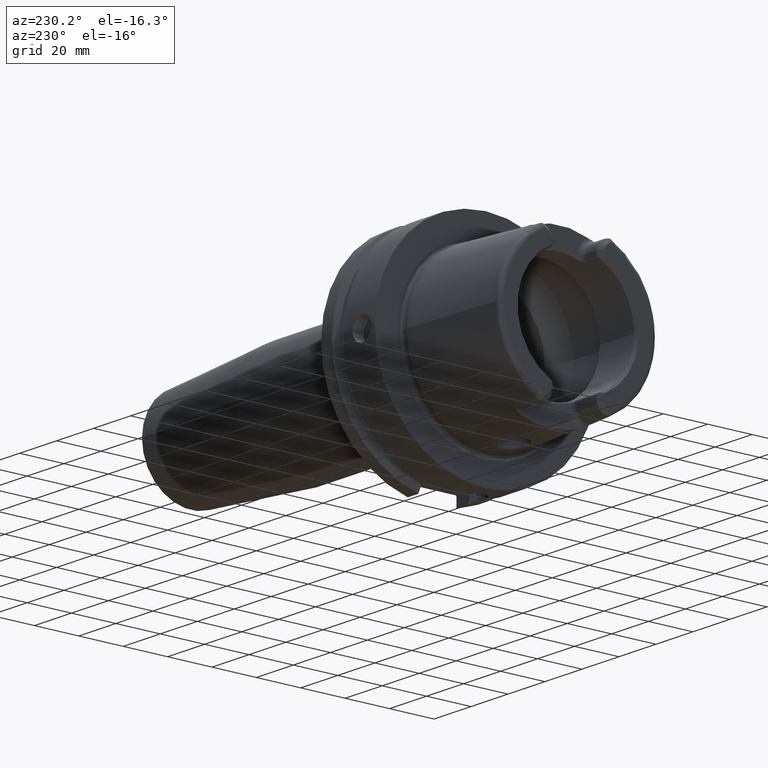
[diagram: clean part render]
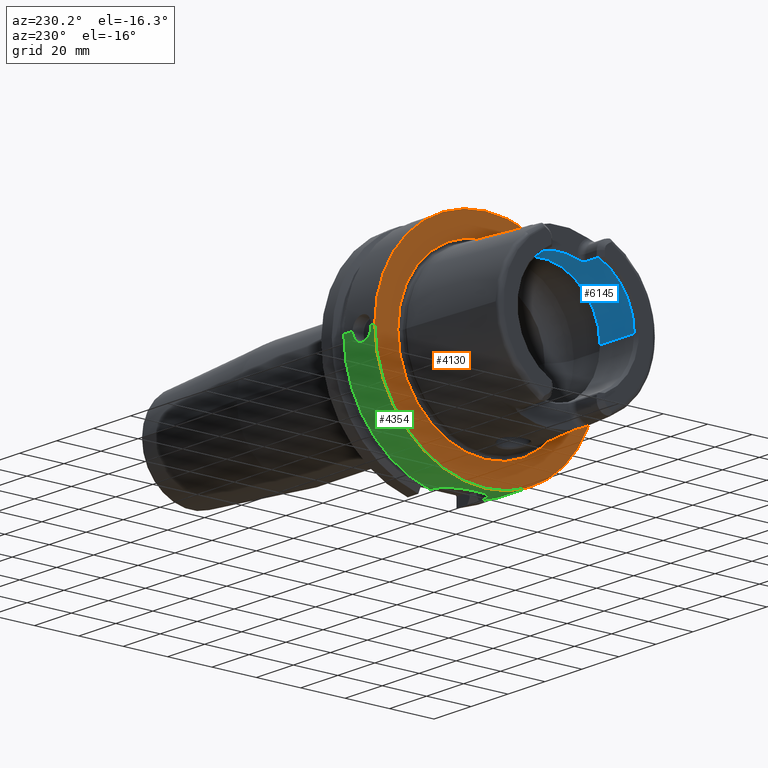
[diagram: same view with three faces highlighted in distinct colors, each labeled with its STEP entity id]
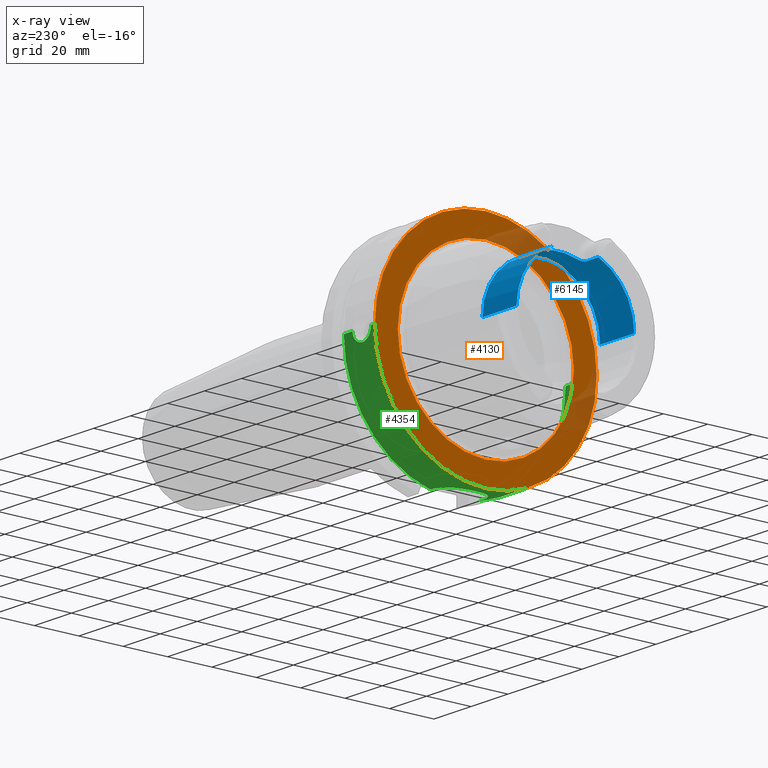
[diagram: x-ray of the same camera — body ghosted, the three highlighted faces saturated]
A machine part, auxiliary view with three faces highlighted in distinct colors.
The next image is the same camera in x-ray (body ghosted, the three faces saturated) — at least one of them is partly hidden behind the body in this view.
Their STEP definitions:

[orange] entity #4130 — the highlighted planar face has unit normal (1, 0, 0).
#905=CARTESIAN_POINT('',(2.842170943040E-14,0.E0,0.E0));
#906=DIRECTION('',(1.E0,0.E0,0.E0));
#907=DIRECTION('',(0.E0,1.E0,0.E0));
#908=AXIS2_PLACEMENT_3D('',#905,#906,#907);
#910=CARTESIAN_POINT('',(2.842170943040E-14,0.E0,0.E0));
#911=DIRECTION('',(-1.E0,0.E0,0.E0));
#912=DIRECTION('',(0.E0,1.E0,0.E0));
#913=AXIS2_PLACEMENT_3D('',#910,#911,#912);
#915=CARTESIAN_POINT('',(0.E0,0.E0,0.E0));
#916=DIRECTION('',(-1.E0,0.E0,0.E0));
#917=DIRECTION('',(0.E0,-1.E0,0.E0));
#918=AXIS2_PLACEMENT_3D('',#915,#916,#917);
#920=CARTESIAN_POINT('',(0.E0,0.E0,0.E0));
#921=DIRECTION('',(-1.E0,0.E0,0.E0));
#922=DIRECTION('',(0.E0,1.E0,0.E0));
#923=AXIS2_PLACEMENT_3D('',#920,#921,#922);
#2693=CARTESIAN_POINT('',(2.842170943040E-14,5.E1,0.E0));
#2694=CARTESIAN_POINT('',(2.842170943040E-14,-5.E1,0.E0));
#2695=VERTEX_POINT('',#2693);
#2696=VERTEX_POINT('',#2694);
#2721=CARTESIAN_POINT('',(0.E0,-3.963225E1,0.E0));
#2722=VERTEX_POINT('',#2721);
#2723=CARTESIAN_POINT('',(0.E0,3.963225E1,0.E0));
#2724=VERTEX_POINT('',#2723);
#4115=CARTESIAN_POINT('',(0.E0,0.E0,0.E0));
#4116=DIRECTION('',(1.E0,0.E0,0.E0));
#4117=DIRECTION('',(0.E0,-1.E0,0.E0));
#4118=AXIS2_PLACEMENT_3D('',#4115,#4116,#4117);
#4119=PLANE('',#4118);
#4121=ORIENTED_EDGE('',*,*,#4120,.T.);
#4123=ORIENTED_EDGE('',*,*,#4122,.F.);
#4124=EDGE_LOOP('',(#4121,#4123));
#4125=FACE_OUTER_BOUND('',#4124,.F.);
#4126=ORIENTED_EDGE('',*,*,#4110,.T.);
#4127=ORIENTED_EDGE('',*,*,#4094,.T.);
#4128=EDGE_LOOP('',(#4126,#4127));
#4129=FACE_BOUND('',#4128,.F.);
#4130=ADVANCED_FACE('',(#4125,#4129),#4119,.F.);
#909=CIRCLE('',#908,5.E1);
#914=CIRCLE('',#913,5.E1);
#919=CIRCLE('',#918,3.963225E1);
#924=CIRCLE('',#923,3.963225E1);
#4094=EDGE_CURVE('',#2724,#2722,#924,.T.);
#4110=EDGE_CURVE('',#2722,#2724,#919,.T.);
#4120=EDGE_CURVE('',#2695,#2696,#909,.T.);
#4122=EDGE_CURVE('',#2695,#2696,#914,.T.);

[blue] entity #6145 — the highlighted cylindrical surface (partial cylindrical patch) has radius 26.5 mm, axis along (1, 0, 0).
#165=CARTESIAN_POINT('',(-4.85E1,1.051E1,2.432673220965E1));
#167=CARTESIAN_POINT('',(-4.85E1,0.E0,0.E0));
#168=DIRECTION('',(1.E0,0.E0,0.E0));
#169=DIRECTION('',(0.E0,1.E0,0.E0));
#170=AXIS2_PLACEMENT_3D('',#167,#168,#169);
#187=CARTESIAN_POINT('',(-4.85E1,0.E0,0.E0));
#188=DIRECTION('',(1.E0,0.E0,0.E0));
#189=DIRECTION('',(0.E0,-3.966037735849E-1,9.179898947038E-1));
#190=AXIS2_PLACEMENT_3D('',#187,#188,#189);
#192=CARTESIAN_POINT('',(-4.85E1,-1.051E1,2.432673220965E1));
#513=DIRECTION('',(-1.E0,0.E0,0.E0));
#514=VECTOR('',#513,1.849662432703E1);
#515=CARTESIAN_POINT('',(-3.000337567297E1,2.65E1,0.E0));
#516=LINE('',#515,#514);
#522=DIRECTION('',(-1.E0,0.E0,0.E0));
#523=VECTOR('',#522,1.849662432703E1);
#524=CARTESIAN_POINT('',(-3.000337567297E1,-2.65E1,0.E0));
#525=LINE('',#524,#523);
#2476=DIRECTION('',(1.E0,0.E0,0.E0));
#2477=VECTOR('',#2476,6.380229667746E0);
#2478=CARTESIAN_POINT('',(-4.838022966775E1,1.039022966775E1,2.437812805470E1));
#2479=LINE('',#2478,#2477);
#2480=CARTESIAN_POINT('',(-3.971132486541E1,8.01E0,2.526044140549E1));
#2481=CARTESIAN_POINT('',(-3.970878365387E1,8.120563234658E0,2.522538218006E1));
#2482=CARTESIAN_POINT('',(-3.971906599640E1,8.340498761E0,2.515406323082E1));
#2483=CARTESIAN_POINT('',(-3.978267622202E1,8.672586520936E0,2.504149237513E1));
#2484=CARTESIAN_POINT('',(-3.989268945815E1,8.989467647893E0,2.492938353432E1));
#2485=CARTESIAN_POINT('',(-4.004052322956E1,9.277750297847E0,2.482340953473E1));
#2486=CARTESIAN_POINT('',(-4.022199090024E1,9.537479373845E0,2.472468297046E1));
#2487=CARTESIAN_POINT('',(-4.043924040036E1,9.773195748073E0,2.463237051391E1));
#2488=CARTESIAN_POINT('',(-4.069196362011E1,9.980705213938E0,2.454892857931E1));
#2489=CARTESIAN_POINT('',(-4.098453186625E1,1.015759575717E1,2.447617541728E1));
#2490=CARTESIAN_POINT('',(-4.132143240488E1,1.029570459017E1,2.441829554688E1));
#2491=CARTESIAN_POINT('',(-4.167918985613E1,1.037618705973E1,2.438412368561E1));
#2492=CARTESIAN_POINT('',(-4.189481839478E1,1.039022966775E1,2.437812805470E1));
#2493=CARTESIAN_POINT('',(-4.2E1,1.039022966775E1,2.437812805470E1));
#2495=CARTESIAN_POINT('',(-3.971132486541E1,-8.01E0,2.526044140549E1));
#2496=CARTESIAN_POINT('',(-3.971132486541E1,-7.271271578955E0,
2.549468967366E1));
#2497=CARTESIAN_POINT('',(-3.971132486546E1,-5.773250992792E0,
2.589833317849E1));
#2498=CARTESIAN_POINT('',(-3.971132486544E1,-3.481810319461E0,
2.630458298809E1));
#2499=CARTESIAN_POINT('',(-3.971132486544E1,-1.163586982585E0,
2.650849211583E1));
#2500=CARTESIAN_POINT('',(-3.971132486544E1,1.163586982585E0,2.650849211583E1));
#2501=CARTESIAN_POINT('',(-3.971132486544E1,3.481810319461E0,2.630458298809E1));
#2502=CARTESIAN_POINT('',(-3.971132486546E1,5.773250992791E0,2.589833317849E1));
#2503=CARTESIAN_POINT('',(-3.971132486541E1,7.271271578958E0,2.549468967366E1));
#2504=CARTESIAN_POINT('',(-3.971132486541E1,8.01E0,2.526044140549E1));
#2506=CARTESIAN_POINT('',(-4.2E1,-1.039022966775E1,2.437812805470E1));
#2507=CARTESIAN_POINT('',(-4.189375760304E1,-1.039022966775E1,
2.437812805470E1));
#2508=CARTESIAN_POINT('',(-4.167635124759E1,-1.037592175927E1,
2.438423721529E1));
#2509=CARTESIAN_POINT('',(-4.131623052643E1,-1.029415408513E1,
2.441895189414E1));
#2510=CARTESIAN_POINT('',(-4.097947032639E1,-1.015497495082E1,
2.447726388108E1));
#2511=CARTESIAN_POINT('',(-4.068903934051E1,-9.978495762119E0,
2.454982411868E1));
#2512=CARTESIAN_POINT('',(-4.043805179144E1,-9.771970406757E0,
2.463285308238E1));
#2513=CARTESIAN_POINT('',(-4.022178538202E1,-9.537157318169E0,
2.472480442904E1));
#2514=CARTESIAN_POINT('',(-4.004048499348E1,-9.277715471543E0,
2.482342368645E1));
#2515=CARTESIAN_POINT('',(-3.989237648633E1,-8.988811706632E0,
2.492962282131E1));
#2516=CARTESIAN_POINT('',(-3.978230284625E1,-8.671343229942E0,
2.504192722240E1));
#2517=CARTESIAN_POINT('',(-3.971884880625E1,-8.338547582645E0,
2.515470883480E1));
#2518=CARTESIAN_POINT('',(-3.970880260289E1,-8.119738798873E0,
2.522564360584E1));
#2519=CARTESIAN_POINT('',(-3.971132486541E1,-8.01E0,2.526044140549E1));
#2521=DIRECTION('',(1.E0,0.E0,0.E0));
#2522=VECTOR('',#2521,6.380229667746E0);
#2523=CARTESIAN_POINT('',(-4.838022966775E1,-1.039022966775E1,
2.437812805470E1));
#2524=LINE('',#2523,#2522);
#2525=CARTESIAN_POINT('',(-4.838022966775E1,-1.039022966775E1,
2.437812805470E1));
#2526=CARTESIAN_POINT('',(-4.842017594144E1,-1.043017594144E1,
2.436110250799E1));
#2527=CARTESIAN_POINT('',(-4.846009940760E1,-1.047009940760E1,
2.434397066250E1));
#2528=CARTESIAN_POINT('',(-4.85E1,-1.051E1,2.432673220965E1));
#2530=CARTESIAN_POINT('',(-3.000337567297E1,0.E0,0.E0));
#2531=DIRECTION('',(1.E0,0.E0,0.E0));
#2532=DIRECTION('',(0.E0,1.E0,0.E0));
#2533=AXIS2_PLACEMENT_3D('',#2530,#2531,#2532);
#2535=CARTESIAN_POINT('',(-4.85E1,1.051E1,2.432673220965E1));
#2536=CARTESIAN_POINT('',(-4.846009940760E1,1.047009940760E1,2.434397066250E1));
#2537=CARTESIAN_POINT('',(-4.842017594144E1,1.043017594144E1,2.436110250799E1));
#2538=CARTESIAN_POINT('',(-4.838022966775E1,1.039022966775E1,2.437812805470E1));
#2741=CARTESIAN_POINT('',(-3.000337567297E1,2.65E1,0.E0));
#2742=VERTEX_POINT('',#2741);
#2743=CARTESIAN_POINT('',(-4.85E1,2.65E1,0.E0));
#2744=VERTEX_POINT('',#2743);
#2753=CARTESIAN_POINT('',(-3.000337567297E1,-2.65E1,0.E0));
#2754=VERTEX_POINT('',#2753);
#2755=CARTESIAN_POINT('',(-4.85E1,-2.65E1,0.E0));
#2756=VERTEX_POINT('',#2755);
#2797=VERTEX_POINT('',#165);
#2812=VERTEX_POINT('',#192);
#2825=CARTESIAN_POINT('',(-4.2E1,1.039022966775E1,2.437812805470E1));
#2826=VERTEX_POINT('',#2825);
#2827=CARTESIAN_POINT('',(-3.971132486541E1,8.01E0,2.526044140549E1));
#2828=VERTEX_POINT('',#2827);
#2829=CARTESIAN_POINT('',(-4.2E1,-1.039022966775E1,2.437812805470E1));
#2830=VERTEX_POINT('',#2829);
#2831=CARTESIAN_POINT('',(-3.971132486541E1,-8.01E0,2.526044140549E1));
#2832=VERTEX_POINT('',#2831);
#2833=CARTESIAN_POINT('',(-4.838022966775E1,1.039022966775E1,2.437812805470E1));
#2834=VERTEX_POINT('',#2833);
#2835=CARTESIAN_POINT('',(-4.838022966775E1,-1.039022966775E1,
2.437812805470E1));
#2836=VERTEX_POINT('',#2835);
#6121=CARTESIAN_POINT('',(-5.3125E1,0.E0,0.E0));
#6122=DIRECTION('',(1.E0,0.E0,0.E0));
#6123=DIRECTION('',(0.E0,-1.E0,0.E0));
#6124=AXIS2_PLACEMENT_3D('',#6121,#6122,#6123);
#6125=CYLINDRICAL_SURFACE('',#6124,2.65E1);
#6126=ORIENTED_EDGE('',*,*,#3351,.T.);
#6128=ORIENTED_EDGE('',*,*,#6127,.F.);
#6130=ORIENTED_EDGE('',*,*,#6129,.F.);
#6132=ORIENTED_EDGE('',*,*,#6131,.F.);
#6134=ORIENTED_EDGE('',*,*,#6133,.F.);
#6136=ORIENTED_EDGE('',*,*,#6135,.T.);
#6137=ORIENTED_EDGE('',*,*,#3316,.T.);
#6138=ORIENTED_EDGE('',*,*,#3578,.F.);
#6139=ORIENTED_EDGE('',*,*,#6101,.F.);
#6140=ORIENTED_EDGE('',*,*,#3574,.T.);
#6141=ORIENTED_EDGE('',*,*,#3300,.T.);
#6142=ORIENTED_EDGE('',*,*,#3331,.T.);
#6143=EDGE_LOOP('',(#6126,#6128,#6130,#6132,#6134,#6136,#6137,#6138,#6139,#6140,
#6141,#6142));
#6144=FACE_OUTER_BOUND('',#6143,.F.);
#6145=ADVANCED_FACE('',(#6144),#6125,.F.);
#171=CIRCLE('',#170,2.65E1);
#191=CIRCLE('',#190,2.65E1);
#2494=B_SPLINE_CURVE_WITH_KNOTS('',3,(#2480,#2481,#2482,#2483,#2484,#2485,#2486,
#2487,#2488,#2489,#2490,#2491,#2492,#2493),.UNSPECIFIED.,.F.,.F.,(4,1,1,1,1,1,1,
1,1,1,1,4),(0.E0,9.090909090909E-2,1.818181818182E-1,2.727272727273E-1,
3.636363636364E-1,4.545454545455E-1,5.454545454545E-1,6.363636363636E-1,
7.272727272727E-1,8.181818181818E-1,9.090909090909E-1,1.E0),.UNSPECIFIED.);
#2505=B_SPLINE_CURVE_WITH_KNOTS('',3,(#2495,#2496,#2497,#2498,#2499,#2500,#2501,
#2502,#2503,#2504),.UNSPECIFIED.,.F.,.F.,(4,1,1,1,1,1,1,4),(0.E0,
1.428571428571E-1,2.857142857143E-1,4.285714285714E-1,5.714285714286E-1,
7.142857142857E-1,8.571428571429E-1,1.E0),.UNSPECIFIED.);
#2520=B_SPLINE_CURVE_WITH_KNOTS('',3,(#2506,#2507,#2508,#2509,#2510,#2511,#2512,
#2513,#2514,#2515,#2516,#2517,#2518,#2519),.UNSPECIFIED.,.F.,.F.,(4,1,1,1,1,1,1,
1,1,1,1,4),(0.E0,9.090909090909E-2,1.818181818182E-1,2.727272727273E-1,
3.636363636364E-1,4.545454545455E-1,5.454545454545E-1,6.363636363636E-1,
7.272727272727E-1,8.181818181818E-1,9.090909090909E-1,1.E0),.UNSPECIFIED.);
#2529=B_SPLINE_CURVE_WITH_KNOTS('',3,(#2525,#2526,#2527,#2528),.UNSPECIFIED.,
.F.,.F.,(4,4),(0.E0,1.E0),.UNSPECIFIED.);
#2534=CIRCLE('',#2533,2.65E1);
#2539=B_SPLINE_CURVE_WITH_KNOTS('',3,(#2535,#2536,#2537,#2538),.UNSPECIFIED.,
.F.,.F.,(4,4),(0.E0,1.E0),.UNSPECIFIED.);
#3300=EDGE_CURVE('',#2744,#2797,#171,.T.);
#3316=EDGE_CURVE('',#2812,#2756,#191,.T.);
#3331=EDGE_CURVE('',#2797,#2834,#2539,.T.);
#3351=EDGE_CURVE('',#2834,#2826,#2479,.T.);
#3574=EDGE_CURVE('',#2742,#2744,#516,.T.);
#3578=EDGE_CURVE('',#2754,#2756,#525,.T.);
#6101=EDGE_CURVE('',#2742,#2754,#2534,.T.);
#6127=EDGE_CURVE('',#2828,#2826,#2494,.T.);
#6129=EDGE_CURVE('',#2832,#2828,#2505,.T.);
#6131=EDGE_CURVE('',#2830,#2832,#2520,.T.);
#6133=EDGE_CURVE('',#2836,#2830,#2524,.T.);
#6135=EDGE_CURVE('',#2836,#2812,#2529,.T.);

[green] entity #4354 — the highlighted cylindrical surface (partial cylindrical patch) has radius 50 mm, axis along (1, 0, 0).
#910=CARTESIAN_POINT('',(2.842170943040E-14,0.E0,0.E0));
#911=DIRECTION('',(-1.E0,0.E0,0.E0));
#912=DIRECTION('',(0.E0,1.E0,0.E0));
#913=AXIS2_PLACEMENT_3D('',#910,#911,#912);
#965=CARTESIAN_POINT('',(2.E0,5.E1,1.118758432857E-13));
#967=CARTESIAN_POINT('',(1.2E1,5.E1,2.305800131571E-14));
#1149=DIRECTION('',(1.E0,0.E0,0.E0));
#1150=VECTOR('',#1149,7.524047358084E-1);
#1151=CARTESIAN_POINT('',(1.6E1,1.1E1,-4.877499359303E1));
#1152=LINE('',#1151,#1150);
#1153=CARTESIAN_POINT('',(1.675240473581E1,0.E0,0.E0));
#1154=DIRECTION('',(1.E0,0.E0,0.E0));
#1155=DIRECTION('',(0.E0,2.2E-1,-9.754998718606E-1));
#1156=AXIS2_PLACEMENT_3D('',#1153,#1154,#1155);
#1158=DIRECTION('',(-1.E0,0.E0,0.E0));
#1159=VECTOR('',#1158,4.752404735808E0);
#1160=CARTESIAN_POINT('',(1.675240473581E1,5.E1,0.E0));
#1161=LINE('',#1160,#1159);
#1162=CARTESIAN_POINT('',(7.E0,4.974937185533E1,-5.E0));
#1163=CARTESIAN_POINT('',(7.214633369567E0,4.974937185533E1,-5.E0));
#1164=CARTESIAN_POINT('',(7.640386298435E0,4.975213065018E1,-4.972666360467E0));
#1165=CARTESIAN_POINT('',(8.274641361953E0,4.976438841384E1,-4.849158121706E0));
#1166=CARTESIAN_POINT('',(8.886020855356E0,4.978391945578E1,-4.645521380047E0));
#1167=CARTESIAN_POINT('',(9.464921805396E0,4.980935892457E1,-4.365866273701E0));
#1168=CARTESIAN_POINT('',(1.000148682294E1,4.983894625348E1,-4.016101899832E0));
#1169=CARTESIAN_POINT('',(1.049544382004E1,4.987128929303E1,-3.594954537167E0));
#1170=CARTESIAN_POINT('',(1.093328252566E1,4.990407345488E1,-3.109850358381E0));
#1171=CARTESIAN_POINT('',(1.130435342350E1,4.993485871418E1,-2.572130277900E0));
#1172=CARTESIAN_POINT('',(1.160677173349E1,4.996197754497E1,-1.981903060800E0));
#1173=CARTESIAN_POINT('',(1.183330662283E1,4.998349884815E1,-1.340220481854E0));
#1174=CARTESIAN_POINT('',(1.197044850157E1,4.999703119876E1,
-6.688359514011E-1));
#1175=CARTESIAN_POINT('',(1.2E1,5.E1,-2.237498970126E-1));
#1176=CARTESIAN_POINT('',(1.2E1,5.E1,2.305800131571E-14));
#1178=CARTESIAN_POINT('',(2.E0,5.E1,1.118758432857E-13));
#1179=CARTESIAN_POINT('',(2.E0,5.E1,-2.234702192277E-1));
#1180=CARTESIAN_POINT('',(2.029478359112E0,4.999703853190E1,
-6.681473837066E-1));
#1181=CARTESIAN_POINT('',(2.166444197694E0,4.998352324893E1,-1.339309249725E0));
#1182=CARTESIAN_POINT('',(2.392942530114E0,4.996200329443E1,-1.981343201711E0));
#1183=CARTESIAN_POINT('',(2.695842610324E0,4.993484130346E1,-2.572495925426E0));
#1184=CARTESIAN_POINT('',(3.066846855438E0,4.990406337793E1,-3.109998926782E0));
#1185=CARTESIAN_POINT('',(3.504802790907E0,4.987127154916E1,-3.595208944890E0));
#1186=CARTESIAN_POINT('',(3.998946554545E0,4.983891901808E1,-4.016442348510E0));
#1187=CARTESIAN_POINT('',(4.535798414476E0,4.980932338391E1,-4.366269177248E0));
#1188=CARTESIAN_POINT('',(5.114389528668E0,4.978390508543E1,-4.645671467419E0));
#1189=CARTESIAN_POINT('',(5.725653660578E0,4.976438108882E1,-4.849233183616E0));
#1190=CARTESIAN_POINT('',(6.359805679124E0,4.975212880871E1,-4.972684387731E0));
#1191=CARTESIAN_POINT('',(6.785436141585E0,4.974937185533E1,-5.E0));
#1192=CARTESIAN_POINT('',(7.E0,4.974937185533E1,-5.E0));
#1194=DIRECTION('',(-1.E0,0.E0,-5.389684364428E-14));
#1195=VECTOR('',#1194,2.E0);
#1196=CARTESIAN_POINT('',(2.E0,5.E1,1.118758432857E-13));
#1197=LINE('',#1196,#1195);
#1198=DIRECTION('',(-1.E0,0.E0,0.E0));
#1199=VECTOR('',#1198,1.675240473581E1);
#1200=CARTESIAN_POINT('',(1.675240473581E1,-5.E1,-1.020538999289E-14));
#1201=LINE('',#1200,#1199);
#1202=CARTESIAN_POINT('',(1.675240473581E1,0.E0,0.E0));
#1203=DIRECTION('',(1.E0,0.E0,0.E0));
#1204=DIRECTION('',(0.E0,-1.E0,0.E0));
#1205=AXIS2_PLACEMENT_3D('',#1202,#1203,#1204);
#1207=DIRECTION('',(1.E0,0.E0,0.E0));
#1208=VECTOR('',#1207,7.524047358084E-1);
#1209=CARTESIAN_POINT('',(1.6E1,-1.1E1,-4.877499359303E1));
#1210=LINE('',#1209,#1208);
#1211=CARTESIAN_POINT('',(1.6E1,1.1E1,-4.877499359303E1));
#1212=CARTESIAN_POINT('',(1.559018257905E1,1.1E1,-4.877499359303E1));
#1213=CARTESIAN_POINT('',(1.477711159673E1,1.095451320529E1,-4.878528536585E1));
#1214=CARTESIAN_POINT('',(1.357067145529E1,1.075155562543E1,-4.883060913739E1));
#1215=CARTESIAN_POINT('',(1.239697044362E1,1.041701199330E1,-4.890337958253E1));
#1216=CARTESIAN_POINT('',(1.126604368867E1,9.954285023678E0,-4.900007168819E1));
#1217=CARTESIAN_POINT('',(1.018861460789E1,9.366719390129E0,-4.911629237336E1));
#1218=CARTESIAN_POINT('',(9.171169852965E0,8.653611601527E0,-4.924753373663E1));
#1219=CARTESIAN_POINT('',(8.238112427873E0,7.827355870653E0,-4.938617340423E1));
#1220=CARTESIAN_POINT('',(7.408534809738E0,6.906350690547E0,-4.952392252207E1));
#1221=CARTESIAN_POINT('',(6.684814288863E0,5.894847548323E0,-4.965510065551E1));
#1222=CARTESIAN_POINT('',(6.073071272628E0,4.794393782369E0,-4.977397254495E1));
#1223=CARTESIAN_POINT('',(5.592123651736E0,3.632677023721E0,-4.987254683568E1));
#1224=CARTESIAN_POINT('',(5.250238197135E0,2.439289241831E0,-4.994531736735E1));
#1225=CARTESIAN_POINT('',(5.045520699082E0,1.225562746985E0,-4.998995582807E1));
#1226=CARTESIAN_POINT('',(4.977227881444E0,-3.740276953115E-4,
-5.000502466790E1));
#1227=CARTESIAN_POINT('',(5.045567799397E0,-1.225855878190E0,
-4.998994549498E1));
#1228=CARTESIAN_POINT('',(5.250299426848E0,-2.439598673877E0,
-4.994530410544E1));
#1229=CARTESIAN_POINT('',(5.592303250762E0,-3.633222860669E0,
-4.987250891646E1));
#1230=CARTESIAN_POINT('',(6.073397920689E0,-4.795067840635E0,
-4.977390711218E1));
#1231=CARTESIAN_POINT('',(6.685094341996E0,-5.895262007410E0,
-4.965504880039E1));
#1232=CARTESIAN_POINT('',(7.408627914384E0,-6.906453417659E0,
-4.952390705198E1));
#1233=CARTESIAN_POINT('',(8.238178868202E0,-7.827424926999E0,
-4.938616267622E1));
#1234=CARTESIAN_POINT('',(9.171249006951E0,-8.653666912305E0,
-4.924752342943E1));
#1235=CARTESIAN_POINT('',(1.018844028681E1,-9.366593829070E0,
-4.911631544663E1));
#1236=CARTESIAN_POINT('',(1.126555151976E1,-9.954042725384E0,
-4.900012084109E1));
#1237=CARTESIAN_POINT('',(1.239641067197E1,-1.041682105138E1,
-4.890342051862E1));
#1238=CARTESIAN_POINT('',(1.357019214113E1,-1.075145104870E1,
-4.883063231386E1));
#1239=CARTESIAN_POINT('',(1.477674649303E1,-1.095448033737E1,
-4.878529280321E1));
#1240=CARTESIAN_POINT('',(1.559004302136E1,-1.1E1,-4.877499359303E1));
#1241=CARTESIAN_POINT('',(1.6E1,-1.1E1,-4.877499359303E1));
#2693=CARTESIAN_POINT('',(2.842170943040E-14,5.E1,0.E0));
#2694=CARTESIAN_POINT('',(2.842170943040E-14,-5.E1,0.E0));
#2695=VERTEX_POINT('',#2693);
#2696=VERTEX_POINT('',#2694);
#2912=CARTESIAN_POINT('',(1.675240473581E1,-5.E1,-1.020538999289E-14));
#2913=VERTEX_POINT('',#2912);
#2940=CARTESIAN_POINT('',(7.E0,4.974937185533E1,-5.E0));
#2941=VERTEX_POINT('',#2940);
#2942=VERTEX_POINT('',#965);
#2943=VERTEX_POINT('',#967);
#2944=CARTESIAN_POINT('',(1.675240473581E1,5.E1,0.E0));
#2945=VERTEX_POINT('',#2944);
#2994=CARTESIAN_POINT('',(1.6E1,1.1E1,-4.877499359303E1));
#2995=CARTESIAN_POINT('',(1.675240473581E1,1.1E1,-4.877499359303E1));
#2996=VERTEX_POINT('',#2994);
#2997=VERTEX_POINT('',#2995);
#3002=CARTESIAN_POINT('',(1.6E1,-1.1E1,-4.877499359303E1));
#3003=CARTESIAN_POINT('',(1.675240473581E1,-1.1E1,-4.877499359303E1));
#3004=VERTEX_POINT('',#3002);
#3005=VERTEX_POINT('',#3003);
#4329=CARTESIAN_POINT('',(-5.395E1,0.E0,0.E0));
#4330=DIRECTION('',(1.E0,0.E0,0.E0));
#4331=DIRECTION('',(0.E0,-1.E0,0.E0));
#4332=AXIS2_PLACEMENT_3D('',#4329,#4330,#4331);
#4333=CYLINDRICAL_SURFACE('',#4332,5.E1);
#4335=ORIENTED_EDGE('',*,*,#4334,.T.);
#4337=ORIENTED_EDGE('',*,*,#4336,.T.);
#4338=ORIENTED_EDGE('',*,*,#4153,.T.);
#4340=ORIENTED_EDGE('',*,*,#4339,.F.);
#4342=ORIENTED_EDGE('',*,*,#4341,.F.);
#4343=ORIENTED_EDGE('',*,*,#4147,.T.);
#4344=ORIENTED_EDGE('',*,*,#4122,.T.);
#4345=ORIENTED_EDGE('',*,*,#4144,.F.);
#4347=ORIENTED_EDGE('',*,*,#4346,.T.);
#4349=ORIENTED_EDGE('',*,*,#4348,.F.);
#4351=ORIENTED_EDGE('',*,*,#4350,.F.);
#4352=EDGE_LOOP('',(#4335,#4337,#4338,#4340,#4342,#4343,#4344,#4345,#4347,#4349,
#4351));
#4353=FACE_OUTER_BOUND('',#4352,.F.);
#4354=ADVANCED_FACE('',(#4353),#4333,.T.);
#914=CIRCLE('',#913,5.E1);
#1157=CIRCLE('',#1156,5.E1);
#1177=B_SPLINE_CURVE_WITH_KNOTS('',3,(#1162,#1163,#1164,#1165,#1166,#1167,#1168,
#1169,#1170,#1171,#1172,#1173,#1174,#1175,#1176),.UNSPECIFIED.,.F.,.F.,(4,1,1,1,
1,1,1,1,1,1,1,1,4),(0.E0,8.333333333333E-2,1.666666666667E-1,2.5E-1,
3.333333333333E-1,4.166666666667E-1,5.E-1,5.833333333333E-1,6.666666666667E-1,
7.5E-1,8.333333333333E-1,9.166666666667E-1,1.E0),.UNSPECIFIED.);
#1193=B_SPLINE_CURVE_WITH_KNOTS('',3,(#1178,#1179,#1180,#1181,#1182,#1183,#1184,
#1185,#1186,#1187,#1188,#1189,#1190,#1191,#1192),.UNSPECIFIED.,.F.,.F.,(4,1,1,1,
1,1,1,1,1,1,1,1,4),(0.E0,8.333333333333E-2,1.666666666667E-1,2.5E-1,
3.333333333333E-1,4.166666666667E-1,5.E-1,5.833333333333E-1,6.666666666667E-1,
7.5E-1,8.333333333333E-1,9.166666666667E-1,1.E0),.UNSPECIFIED.);
#1206=CIRCLE('',#1205,5.E1);
#1242=B_SPLINE_CURVE_WITH_KNOTS('',3,(#1211,#1212,#1213,#1214,#1215,#1216,#1217,
#1218,#1219,#1220,#1221,#1222,#1223,#1224,#1225,#1226,#1227,#1228,#1229,#1230,
#1231,#1232,#1233,#1234,#1235,#1236,#1237,#1238,#1239,#1240,#1241),
.UNSPECIFIED.,.F.,.F.,(4,1,1,1,1,1,1,1,1,1,1,1,1,1,1,1,1,1,1,1,1,1,1,1,1,1,1,1,
4),(0.E0,3.571428571429E-2,7.142857142857E-2,1.071428571429E-1,
1.428571428571E-1,1.785714285714E-1,2.142857142857E-1,2.5E-1,2.857142857143E-1,
3.214285714286E-1,3.571428571429E-1,3.928571428571E-1,4.285714285714E-1,
4.642857142857E-1,5.E-1,5.357142857143E-1,5.714285714286E-1,6.071428571429E-1,
6.428571428571E-1,6.785714285714E-1,7.142857142857E-1,7.5E-1,7.857142857143E-1,
8.214285714286E-1,8.571428571429E-1,8.928571428571E-1,9.285714285714E-1,
9.642857142857E-1,1.E0),.UNSPECIFIED.);
#4122=EDGE_CURVE('',#2695,#2696,#914,.T.);
#4144=EDGE_CURVE('',#2913,#2696,#1201,.T.);
#4147=EDGE_CURVE('',#2942,#2695,#1197,.T.);
#4153=EDGE_CURVE('',#2945,#2943,#1161,.T.);
#4334=EDGE_CURVE('',#2996,#2997,#1152,.T.);
#4336=EDGE_CURVE('',#2997,#2945,#1157,.T.);
#4339=EDGE_CURVE('',#2941,#2943,#1177,.T.);
#4341=EDGE_CURVE('',#2942,#2941,#1193,.T.);
#4346=EDGE_CURVE('',#2913,#3005,#1206,.T.);
#4348=EDGE_CURVE('',#3004,#3005,#1210,.T.);
#4350=EDGE_CURVE('',#2996,#3004,#1242,.T.);